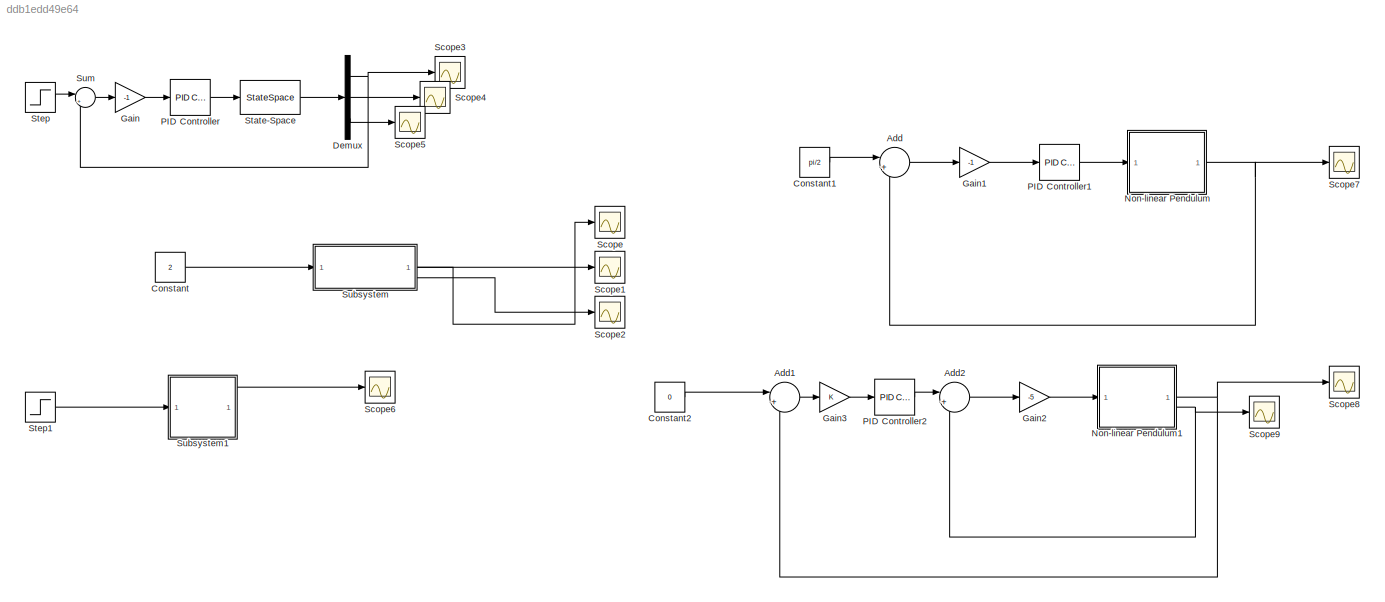
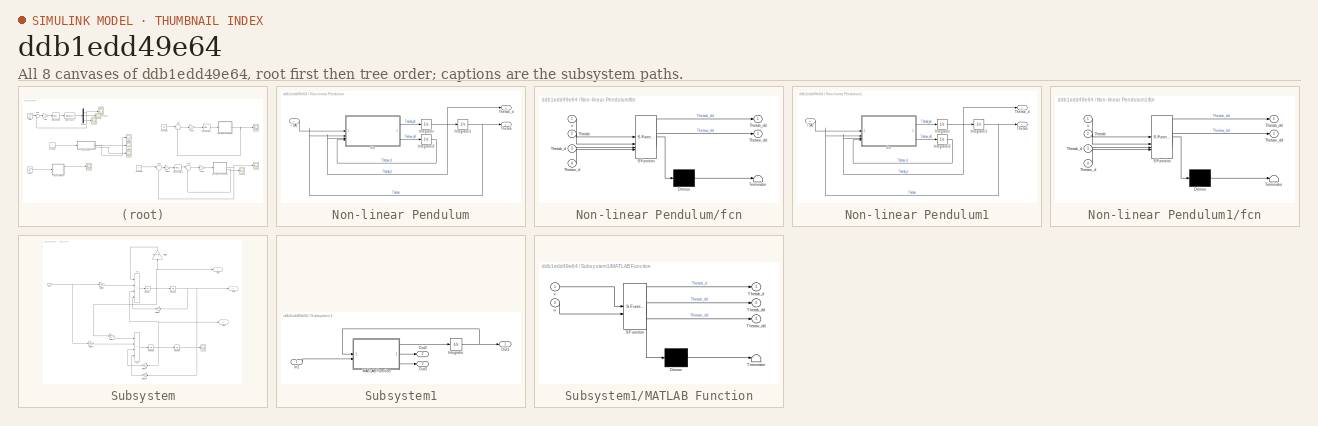
[diagram: thumbnail index - all 8 canvases of the model, root first then tree order]
MODEL slx_ddb1edd49e64
KIND model
CONFIG AbsTol = auto
CONFIG EnableMultiTasking = off
CONFIG FixedStep = 0.00001
CONFIG MaxStep = auto
CONFIG MinStep = auto
CONFIG RelTol = 1e-3
CONFIG SampleTimeConstraint = Unconstrained
CONFIG SolverName = FixedStepAuto
CONFIG StartTime = 0.0
CONFIG StopTime = 5
WORKSPACE source: mxarray member
WORKSPACE g = 9.81
BLOCK [Sum] Add
  Inputs = |+-
BLOCK [Sum] Add1
  Inputs = |+-
BLOCK [Sum] Add2
  Inputs = |+-
BLOCK [Constant] Constant
  Commented = on
  Value = 2
BLOCK [Constant] Constant1
  Value = pi/2
BLOCK [Constant] Constant2
  Value = 0
BLOCK [Demux] Demux
  Outputs = 3
BLOCK [Gain] Gain
  Gain = -1
BLOCK [Gain] Gain1
  Gain = -1
BLOCK [Gain] Gain2
  Gain = -5
BLOCK [Gain] Gain3
BLOCK [SubSystem] Non-linear Pendulum
BLOCK [Integrator] Non-linear Pendulum/Integrator
BLOCK [Integrator] Non-linear Pendulum/Integrator1
  InitialCondition = pi
BLOCK [Integrator] Non-linear Pendulum/Integrator2
BLOCK [Outport] Non-linear Pendulum/Thetab
BLOCK [Outport] Non-linear Pendulum/Thetab_d
  Port = 2
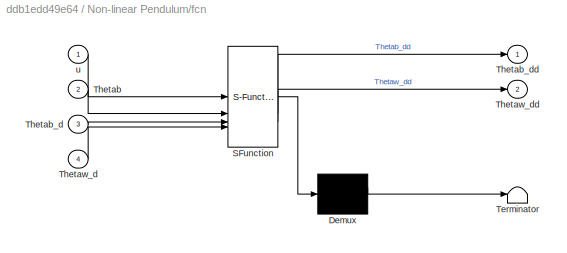
BLOCK [SubSystem] Non-linear Pendulum/fcn
  ErrorFcn = Stateflow.Translate.translate
  PermitHierarchicalResolution = ExplicitOnly
  SFBlockType = MATLAB Function
  TreatAsAtomicUnit = on
BLOCK [Demux] Non-linear Pendulum/fcn/ Demux 
  Outputs = 1
BLOCK [S-Function] Non-linear Pendulum/fcn/ SFunction 
  EnableBusSupport = on
  FunctionName = sf_sfun
  PortCounts = [4 3]
  SFcnIsStateOwnerBlock = off
  SFunctionDeploymentMode = off
  Tag = Stateflow S-Function 1
BLOCK [Terminator] Non-linear Pendulum/fcn/ Terminator 
BLOCK [Inport] Non-linear Pendulum/fcn/Thetab
  Port = 2
BLOCK [Inport] Non-linear Pendulum/fcn/Thetab_d
  Port = 3
BLOCK [Outport] Non-linear Pendulum/fcn/Thetab_dd
BLOCK [Inport] Non-linear Pendulum/fcn/Thetaw_d
  Port = 4
BLOCK [Outport] Non-linear Pendulum/fcn/Thetaw_dd
  Port = 2
BLOCK [Inport] Non-linear Pendulum/fcn/u
BLOCK [Inport] Non-linear Pendulum/i (A)
BLOCK [SubSystem] Non-linear Pendulum1
BLOCK [Integrator] Non-linear Pendulum1/Integrator
  InitialCondition = pi/3
BLOCK [Integrator] Non-linear Pendulum1/Integrator1
BLOCK [Integrator] Non-linear Pendulum1/Integrator2
BLOCK [Outport] Non-linear Pendulum1/Thetab
BLOCK [Outport] Non-linear Pendulum1/Thetab_d
  Port = 2
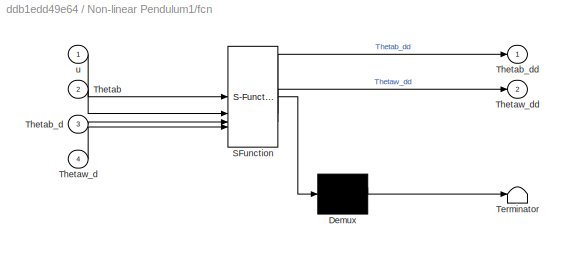
BLOCK [SubSystem] Non-linear Pendulum1/fcn
  ErrorFcn = Stateflow.Translate.translate
  PermitHierarchicalResolution = ExplicitOnly
  SFBlockType = MATLAB Function
  TreatAsAtomicUnit = on
BLOCK [Demux] Non-linear Pendulum1/fcn/ Demux 
  Outputs = 1
BLOCK [S-Function] Non-linear Pendulum1/fcn/ SFunction 
  EnableBusSupport = on
  FunctionName = sf_sfun
  PortCounts = [4 3]
  SFcnIsStateOwnerBlock = off
  SFunctionDeploymentMode = off
  Tag = Stateflow S-Function 3
BLOCK [Terminator] Non-linear Pendulum1/fcn/ Terminator 
BLOCK [Inport] Non-linear Pendulum1/fcn/Thetab
  Port = 2
BLOCK [Inport] Non-linear Pendulum1/fcn/Thetab_d
  Port = 3
BLOCK [Outport] Non-linear Pendulum1/fcn/Thetab_dd
BLOCK [Inport] Non-linear Pendulum1/fcn/Thetaw_d
  Port = 4
BLOCK [Outport] Non-linear Pendulum1/fcn/Thetaw_dd
  Port = 2
BLOCK [Inport] Non-linear Pendulum1/fcn/u
BLOCK [Inport] Non-linear Pendulum1/i (A)
BLOCK [Reference] PID Controller  REF=slpidlib/PID Controller
  SourceBlock = slpidlib/PID Controller
  SourceType = PID 1dof
BLOCK [Reference] PID Controller1  REF=slpidlib/PID Controller
  SourceBlock = slpidlib/PID Controller
  SourceType = PID 1dof
BLOCK [Reference] PID Controller2  REF=slpidlib/PID Controller
  SourceBlock = slpidlib/PID Controller
  SourceType = PID 1dof
BLOCK [Scope] Scope
  Commented = on
  Floating = off
  NumInputPorts = 1
  ScopeSpecificationString = Simulink.scopes.TimeScopeBlockCfg('CurrentConfiguration', extmgr.ConfigurationSet(extmgr.Configuration('Core','General UI',true),extmgr.Configuration('Core','Source UI',true),extmgr.Configuration('Sources','WiredSimulink',true),extmgr.Configuration('Visuals','Time Domain',true,'SerializedDisplays',{struct('MinYLimReal','-6453301329835491374000565346210152448.00000','MaxYLimReal','39244434684132466...<+1669ch>
BLOCK [Scope] Scope1
  Commented = on
  Floating = off
  NumInputPorts = 1
  ScopeSpecificationString = Simulink.scopes.TimeScopeBlockCfg('CurrentConfiguration', extmgr.ConfigurationSet(extmgr.Configuration('Core','General UI',true),extmgr.Configuration('Core','Source UI',true),extmgr.Configuration('Sources','WiredSimulink',true,'DataLoggingVariableName','ScopeData1'),extmgr.Configuration('Visuals','Time Domain',true,'SerializedDisplays',{struct('MinYLimReal','-26.01637','MaxYLimReal','17.37214','YL...<+1436ch>
BLOCK [Scope] Scope2
  Commented = on
  Floating = off
  NumInputPorts = 1
  ScopeSpecificationString = Simulink.scopes.TimeScopeBlockCfg('CurrentConfiguration', extmgr.ConfigurationSet(extmgr.Configuration('Core','General UI',true),extmgr.Configuration('Core','Source UI',true),extmgr.Configuration('Sources','WiredSimulink',true,'DataLoggingVariableName','ScopeData2'),extmgr.Configuration('Visuals','Time Domain',true,'SerializedDisplays',{struct('MinYLimReal','-16686314611941766345927160999271992610...<+1723ch>
BLOCK [Scope] Scope3
  Floating = off
  NumInputPorts = 1
  ScopeSpecificationString = Simulink.scopes.TimeScopeBlockCfg('CurrentConfiguration', extmgr.ConfigurationSet(extmgr.Configuration('Core','General UI',true),extmgr.Configuration('Core','Source UI',true),extmgr.Configuration('Sources','WiredSimulink',true,'DataLoggingVariableName','ScopeData1'),extmgr.Configuration('Visuals','Time Domain',true,'SerializedDisplays',{struct('MinYLimReal','-1.42118','MaxYLimReal','3.64857','YLab...<+1422ch>
BLOCK [Scope] Scope4
  Floating = off
  NumInputPorts = 1
  ScopeSpecificationString = Simulink.scopes.TimeScopeBlockCfg('CurrentConfiguration', extmgr.ConfigurationSet(extmgr.Configuration('Core','General UI',true),extmgr.Configuration('Core','Source UI',true),extmgr.Configuration('Sources','WiredSimulink',true,'DataLoggingVariableName','ScopeData2'),extmgr.Configuration('Visuals','Time Domain',true,'SerializedDisplays',{struct('MinYLimReal','-91.724','MaxYLimReal','21.9427','YLabe...<+1393ch>
BLOCK [Scope] Scope5
  Floating = off
  NumInputPorts = 1
  ScopeSpecificationString = Simulink.scopes.TimeScopeBlockCfg('CurrentConfiguration', extmgr.ConfigurationSet(extmgr.Configuration('Core','General UI',true),extmgr.Configuration('Core','Source UI',true),extmgr.Configuration('Sources','WiredSimulink',true,'DataLoggingVariableName','ScopeData3'),extmgr.Configuration('Visuals','Time Domain',true,'SerializedDisplays',{struct('MinYLimReal','-189.01406','MaxYLimReal','923.28576','...<+1413ch>
BLOCK [Scope] Scope6
  Commented = on
  Floating = off
  NumInputPorts = 1
  ScopeSpecificationString = Simulink.scopes.TimeScopeBlockCfg('CurrentConfiguration', extmgr.ConfigurationSet(extmgr.Configuration('Core','General UI',true),extmgr.Configuration('Core','Source UI',true),extmgr.Configuration('Sources','WiredSimulink',true,'DataLoggingVariableName','ScopeData4'),extmgr.Configuration('Visuals','Time Domain',true,'SerializedDisplays',{struct('MinYLimReal','-0.39387','MaxYLimReal','3.54484','YLab...<+1402ch>
BLOCK [Scope] Scope7
  Floating = off
  NumInputPorts = 1
  ScopeSpecificationString = Simulink.scopes.TimeScopeBlockCfg('CurrentConfiguration', extmgr.ConfigurationSet(extmgr.Configuration('Core','General UI',true),extmgr.Configuration('Core','Source UI',true),extmgr.Configuration('Sources','WiredSimulink',true,'DataLoggingVariableName','ScopeData1'),extmgr.Configuration('Visuals','Time Domain',true,'SerializedDisplays',{struct('MinYLimReal','0.92457','MaxYLimReal','3.38793','YLabe...<+1416ch>
BLOCK [Scope] Scope8
  Floating = off
  NumInputPorts = 1
  ScopeSpecificationString = Simulink.scopes.TimeScopeBlockCfg('CurrentConfiguration', extmgr.ConfigurationSet(extmgr.Configuration('Core','General UI',true),extmgr.Configuration('Core','Source UI',true),extmgr.Configuration('Sources','WiredSimulink',true,'DataLoggingVariableName','ScopeData2'),extmgr.Configuration('Visuals','Time Domain',true,'SerializedDisplays',{struct('MinYLimReal','-0.00767','MaxYLimReal','0.02062','YLab...<+1441ch>
BLOCK [Scope] Scope9
  Floating = off
  NumInputPorts = 1
  ScopeSpecificationString = Simulink.scopes.TimeScopeBlockCfg('CurrentConfiguration', extmgr.ConfigurationSet(extmgr.Configuration('Core','General UI',true),extmgr.Configuration('Core','Source UI',true),extmgr.Configuration('Sources','WiredSimulink',true,'DataLoggingVariableName','ScopeData3'),extmgr.Configuration('Visuals','Time Domain',true,'SerializedDisplays',{struct('MinYLimReal','-0.31643','MaxYLimReal','1.19871','YLab...<+1443ch>
BLOCK [StateSpace] State-Space
  A = A
  B = B
  C = C
  D = D
  InitialCondition = [pi ; 0 ; 0]
BLOCK [Step] Step
  After = 0
  SampleTime = 0
BLOCK [Step] Step1
  After = 10
  Commented = on
  SampleTime = 0
BLOCK [SubSystem] Subsystem
  Commented = on
  InitFcn = mb = 0.419 ; %% kg : pendulum body  \nmw = 0.204 ; %% kg : wheel masses\nl = 0.085 ; %% m : Distance between the motor axis and the pivot point\nlb = 0.075 ; %% m  : Distance between the center of amss of the pendulum body and the pivot point \nIb = 3.34e-3 ; %% kg.m2 : Moment of inertia of the pendulum body \nIw = 0.57e-3 ; %% kg.m2 : Moment of inertia of the wheel and the motor rotor around the rotat...<+408ch>
  OpenFcn = mb = 0.419 ; %% kg : pendulum body  \nmw = 0.204 ; %% kg : wheel masses\nl = 0.085 ; %% m : Distance between the motor axis and the pivot point\nlb = 0.075 ; %% m  : Distance between the center of amss of the pendulum body and the pivot point \nIb = 3.34e-3 ; %% kg.m2 : Moment of inertia of the pendulum body \nIw = 0.57e-3 ; %% kg.m2 : Moment of inertia of the wheel and the motor rotor around the rotat...<+408ch>
BLOCK [Sum] Subsystem/Add
  IconShape = rectangular
  Inputs = --++
BLOCK [Sum] Subsystem/Add1
  IconShape = rectangular
  Inputs = ++--
BLOCK [Inport] Subsystem/In1
BLOCK [Integrator] Subsystem/Integrator
BLOCK [Integrator] Subsystem/Integrator1
  InitialCondition = 45
BLOCK [Integrator] Subsystem/Integrator2
BLOCK [Integrator] Subsystem/Integrator3
BLOCK [Gain] Subsystem/Multiply
  Gain = Cb/(Ib+mw*l^2)
  NameLocation = right
BLOCK [Gain] Subsystem/Multiply1
  Gain = (mb*lb+mw*l)*g/(Ib+mw*l^2)
  NameLocation = top
BLOCK [Gain] Subsystem/Multiply2
  Gain = 1/(Ib+mw*l^2)
BLOCK [Gain] Subsystem/Multiply3
  Gain = (Ib+Iw+mw*l^2)/(Iw*(Ib+mw*l^2))
BLOCK [Gain] Subsystem/Multiply4
  Gain = Cb/(Ib+mw*l^2)
BLOCK [Gain] Subsystem/Multiply5
  Gain = g*(mb*lb+mw*l)/(Ib+mw*l^2)
  NameLocation = top
BLOCK [Gain] Subsystem/Multiply6
  Gain = (Ib+Iw+mw*l^2)*Cw/(Iw*(Ib+mw*l^2))
  NameLocation = top
BLOCK [Outport] Subsystem/Out1
  IconDisplay = Signal name
BLOCK [Outport] Subsystem/Out2
  IconDisplay = Signal name
  Port = 2
BLOCK [Outport] Subsystem/Out3
  IconDisplay = Signal name
  Port = 3
BLOCK [Scope] Subsystem/Scope
  Floating = off
  NumInputPorts = 1
  ScopeSpecificationString = Simulink.scopes.TimeScopeBlockCfg('CurrentConfiguration', extmgr.ConfigurationSet(extmgr.Configuration('Core','General UI',true),extmgr.Configuration('Core','Source UI',true),extmgr.Configuration('Sources','WiredSimulink',true,'DataLoggingVariableName','ScopeData1'),extmgr.Configuration('Visuals','Time Domain',true,'SerializedDisplays',{struct('MinYLimReal','-10052512555294414026872630578168906781...<+1702ch>
BLOCK [SubSystem] Subsystem1
  Commented = on
BLOCK [Inport] Subsystem1/In1
BLOCK [Integrator] Subsystem1/Integrator
BLOCK [SubSystem] Subsystem1/MATLAB Function
  ErrorFcn = Stateflow.Translate.translate
  PermitHierarchicalResolution = ExplicitOnly
  SFBlockType = MATLAB Function
  TreatAsAtomicUnit = on
BLOCK [Demux] Subsystem1/MATLAB Function/ Demux 
  Outputs = 1
BLOCK [S-Function] Subsystem1/MATLAB Function/ SFunction 
  EnableBusSupport = on
  FunctionName = sf_sfun
  PortCounts = [2 4]
  SFcnIsStateOwnerBlock = off
  SFunctionDeploymentMode = off
  Tag = Stateflow S-Function 2
BLOCK [Terminator] Subsystem1/MATLAB Function/ Terminator 
BLOCK [Outport] Subsystem1/MATLAB Function/Thetab_d
BLOCK [Outport] Subsystem1/MATLAB Function/Thetab_dd
  Port = 2
BLOCK [Outport] Subsystem1/MATLAB Function/Thetaw_dd
  Port = 3
BLOCK [Inport] Subsystem1/MATLAB Function/u
  Port = 2
BLOCK [Inport] Subsystem1/MATLAB Function/x
BLOCK [Outport] Subsystem1/Out1
BLOCK [Outport] Subsystem1/Out2
  Port = 2
BLOCK [Outport] Subsystem1/Out3
  Port = 3
BLOCK [Sum] Sum
  Inputs = |+-
LINE Add1:1 -> Gain3:1
LINE Add2:1 -> Gain2:1
LINE Add:1 -> Gain1:1
LINE Constant1:1 -> Add:1
LINE Constant2:1 -> Add1:1
LINE Constant:1 -> Subsystem:1
NET Demux:1 -> Scope3:1, Sum:2
LINE Demux:2 -> Scope4:1
LINE Demux:3 -> Scope5:1
LINE Gain1:1 -> PID Controller1:1
LINE Gain2:1 -> Non-linear Pendulum1:1
LINE Gain3:1 -> PID Controller2:1
LINE Gain:1 -> PID Controller:1
NET Non-linear Pendulum/Integrator1:1 -> Non-linear Pendulum/Thetab:1, Non-linear Pendulum/fcn:2
LINE Non-linear Pendulum/Integrator2:1 -> Non-linear Pendulum/fcn:4
NET Non-linear Pendulum/Integrator:1 -> Non-linear Pendulum/Integrator1:1, Non-linear Pendulum/Thetab_d:1, Non-linear Pendulum/fcn:3
LINE Non-linear Pendulum/fcn:1 -> Non-linear Pendulum/Integrator:1
LINE Non-linear Pendulum/fcn:2 -> Non-linear Pendulum/Integrator2:1
LINE Non-linear Pendulum/i (A):1 -> Non-linear Pendulum/fcn:1
NET Non-linear Pendulum1/Integrator1:1 -> Non-linear Pendulum1/Thetab:1, Non-linear Pendulum1/fcn:2
LINE Non-linear Pendulum1/Integrator2:1 -> Non-linear Pendulum1/fcn:4
NET Non-linear Pendulum1/Integrator:1 -> Non-linear Pendulum1/Integrator1:1, Non-linear Pendulum1/Thetab_d:1, Non-linear Pendulum1/fcn:3
LINE Non-linear Pendulum1/fcn:1 -> Non-linear Pendulum1/Integrator:1
LINE Non-linear Pendulum1/fcn:2 -> Non-linear Pendulum1/Integrator2:1
LINE Non-linear Pendulum1/i (A):1 -> Non-linear Pendulum1/fcn:1
NET Non-linear Pendulum1:1 -> Add1:2, Scope8:1
NET Non-linear Pendulum1:2 -> Add2:2, Scope9:1
NET Non-linear Pendulum:1 -> Add:2, Scope7:1
LINE PID Controller1:1 -> Non-linear Pendulum:1
LINE PID Controller2:1 -> Add2:1
LINE PID Controller:1 -> State-Space:1
LINE State-Space:1 -> Demux:1
LINE Step1:1 -> Subsystem1:1
LINE Step:1 -> Sum:1
LINE Subsystem/Add1:1 -> Subsystem/Integrator2:1
LINE Subsystem/Add:1 -> Subsystem/Integrator:1
NET Subsystem/In1:1 -> Subsystem/Multiply2:1, Subsystem/Multiply3:1
NET Subsystem/Integrator1:1 -> Subsystem/Multiply1:1, Subsystem/Multiply5:1, Subsystem/Out1:1
NET Subsystem/Integrator2:1 -> Subsystem/Add:3, Subsystem/Integrator3:1, Subsystem/Multiply6:1, Subsystem/Out3:1
LINE Subsystem/Integrator3:1 -> Subsystem/Scope:1
NET Subsystem/Integrator:1 -> Subsystem/Integrator1:1, Subsystem/Multiply4:1, Subsystem/Multiply:1, Subsystem/Out2:1
LINE Subsystem/Multiply1:1 -> Subsystem/Add:4
LINE Subsystem/Multiply2:1 -> Subsystem/Add:2
LINE Subsystem/Multiply3:1 -> Subsystem/Add1:2
LINE Subsystem/Multiply4:1 -> Subsystem/Add1:1
LINE Subsystem/Multiply5:1 -> Subsystem/Add1:4
LINE Subsystem/Multiply6:1 -> Subsystem/Add1:3
LINE Subsystem/Multiply:1 -> Subsystem/Add:1
LINE Subsystem1/In1:1 -> Subsystem1/MATLAB Function:2
NET Subsystem1/Integrator:1 -> Subsystem1/MATLAB Function:1, Subsystem1/Out1:1
LINE Subsystem1/MATLAB Function:1 -> Subsystem1/Integrator:1
LINE Subsystem1/MATLAB Function:2 -> Subsystem1/Out2:1
LINE Subsystem1/MATLAB Function:3 -> Subsystem1/Out3:1
LINE Subsystem1:1 -> Scope6:1
LINE Subsystem:1 -> Scope:1
LINE Subsystem:2 -> Scope1:1
LINE Subsystem:3 -> Scope2:1
LINE Sum:1 -> Gain:1
note: NET lines group one-source signal fan-out (src -> all destinations, sorted); 1:1 wires keep LINE
CHART Non-linear Pendulum/fcn states=1 transitions=1
  STATE_LABEL 'eML_blk_kernel()'
  STATE_LABEL 'SCRIPT:\nfunction [Thetab_dd , Thetaw_dd] = fcn(u , Thetab , Thetab_d , Thetaw_d)\n\nmb = 0.419 ; %% kg : pendulum body\nmw = 0.204 ; %% kg : wheel masses\nl = 0.085 ; %% m : Distance between the motor axis and the pivot point\nlb = 0.075 ; %% m  : Distance between the center of amss of the pendulum body and the pivot point\nIb = 3.34e-3 ; %% kg.m2 : Moment of inertia of the pendulum body\nIw = 0.57e-3 ; ...<+692ch>'
CHART Subsystem1/MATLAB Function states=1 transitions=1
  STATE_LABEL 'eML_blk_kernel()'
  STATE_LABEL 'SCRIPT:\nfunction [Thetab_d,  Thetab_dd,  Thetaw_dd] = fcn(x,u)\n    Thetab_d = x(2,1) ; \n    Thetab_dd = ((mb*lb + mw*l)*g*sin(x(1,1)) - Km*u - Cb*x(2,1) + Cw*x(3,1) ) / (Ib + mw*l^2) ; \n    Thetaw_dd = ( (Ib+Iw+mw*l^2)*(Km*u - Cw*x(3,1)))/(Iw*(Ib+mw*l^2)) - ( (mb*lb + mw*l)*g*sin(x(1))-Cb*x(2,1))/(Ib + mw*l^2) ;\n    \n\n'
CHART Non-linear Pendulum1/fcn states=1 transitions=1
  STATE_LABEL 'eML_blk_kernel()'
  STATE_LABEL 'SCRIPT:\nfunction [Thetab_dd , Thetaw_dd] = fcn(u , Thetab , Thetab_d , Thetaw_d)\n\nmb = 0.419 ; %% kg : pendulum body\nmw = 0.204 ; %% kg : wheel masses\nl = 0.085 ; %% m : Distance between the motor axis and the pivot point\nlb = 0.075 ; %% m  : Distance between the center of amss of the pendulum body and the pivot point\nIb = 3.34e-3 ; %% kg.m2 : Moment of inertia of the pendulum body\nIw = 0.57e-3 ; ...<+692ch>'
CHART  states=0 transitions=0
CHART  states=0 transitions=0
CHART  states=0 transitions=0
